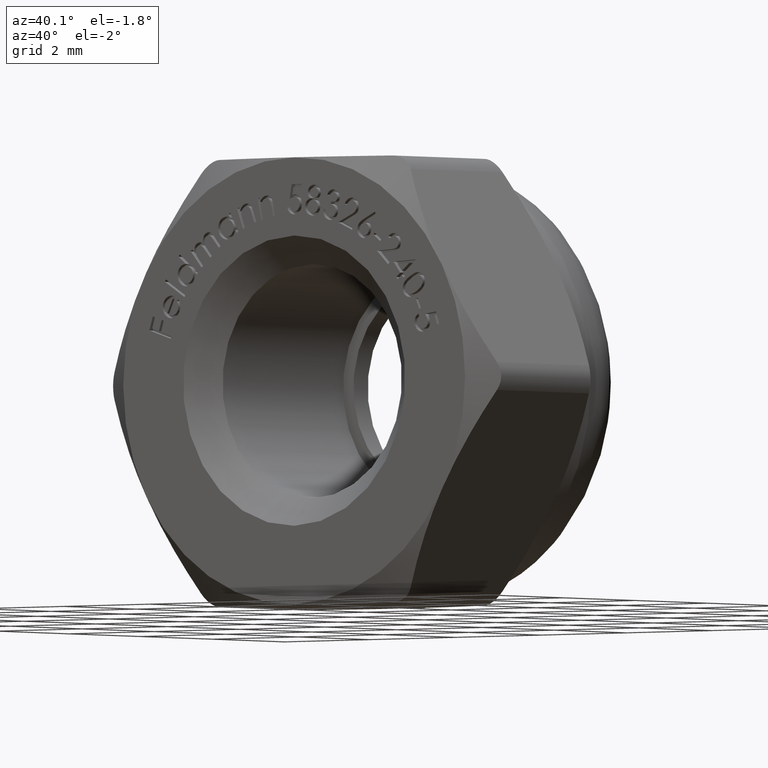
[diagram: clean part render]
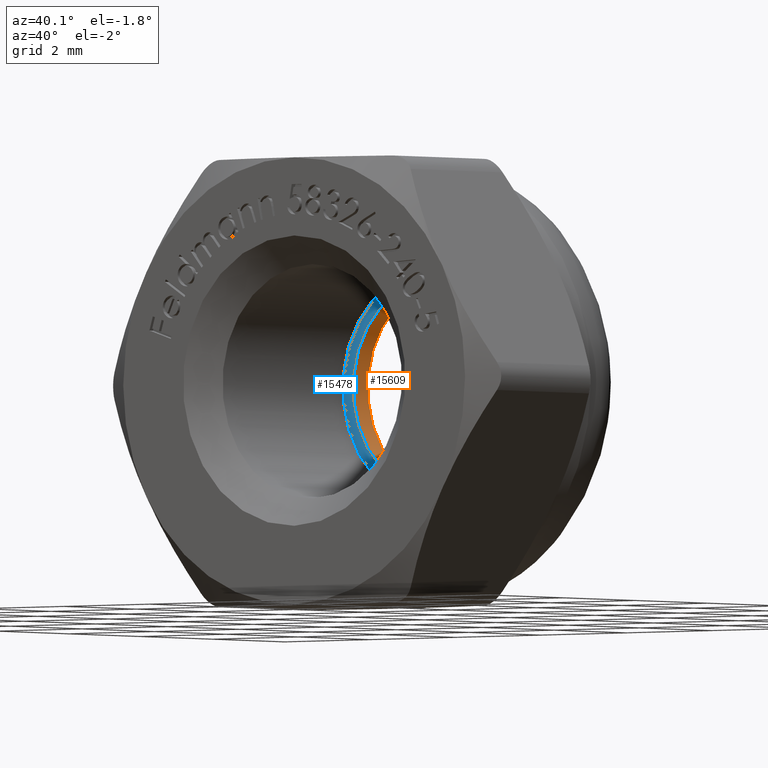
[diagram: same view with the hole feature highlighted: cylindrical wall and planar end face, labeled with their STEP entity ids]
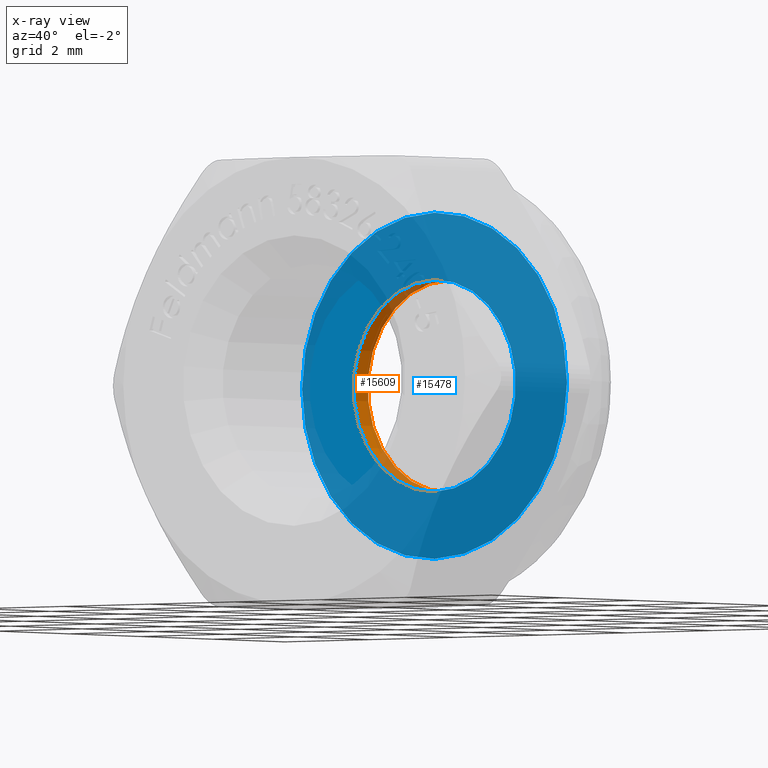
[diagram: x-ray of the same camera — body ghosted, the hole faces saturated]
A machine part, auxiliary view. The highlighted faces form one hole feature of diameter 3.8 mm: the cylindrical wall (entity #15609, orange) and its adjacent planar end face (entity #15478, blue) — they share a circular edge in the B-rep.
The next image is the same camera in x-ray (body ghosted, the hole faces saturated) — the bore reads through the body.
Wall:
#316 = DIRECTION ( 'NONE',  ( -0.000000000000000000, -1.000000000000000000, -0.000000000000000000 ) ) ;
#1316 = ORIENTED_EDGE ( 'NONE', *, *, #1592, .T. ) ;
#1592 = EDGE_CURVE ( 'NONE', #6107, #6107, #8417, .T. ) ;
#1656 = AXIS2_PLACEMENT_3D ( 'NONE', #15737, #14590, #7129 ) ;
#1769 = CIRCLE ( 'NONE', #1656, 1.899999999999999245 ) ;
#1871 = DIRECTION ( 'NONE',  ( 0.000000000000000000, 0.000000000000000000, -1.000000000000000000 ) ) ;
#2502 = DIRECTION ( 'NONE',  ( 0.000000000000000000, 1.000000000000000000, 0.000000000000000000 ) ) ;
#4370 = ORIENTED_EDGE ( 'NONE', *, *, #7376, .F. ) ;
#5129 = FACE_OUTER_BOUND ( 'NONE', #7504, .T. ) ;
#5311 = FACE_OUTER_BOUND ( 'NONE', #15224, .T. ) ;
#6107 = VERTEX_POINT ( 'NONE', #11170 ) ;
#6560 = CARTESIAN_POINT ( 'NONE',  ( 0.000000000000000000, 11.51812408671318622, 0.000000000000000000 ) ) ;
#7129 = DIRECTION ( 'NONE',  ( 0.000000000000000000, 0.000000000000000000, 1.000000000000000000 ) ) ;
#7376 = EDGE_CURVE ( 'NONE', #10370, #10370, #1769, .T. ) ;
#7504 = EDGE_LOOP ( 'NONE', ( #4370 ) ) ;
#8417 = CIRCLE ( 'NONE', #9250, 1.899999999999999245 ) ;
#9250 = AXIS2_PLACEMENT_3D ( 'NONE', #11063, #2502, #14866 ) ;
#9301 = AXIS2_PLACEMENT_3D ( 'NONE', #6560, #316, #1871 ) ;
#10370 = VERTEX_POINT ( 'NONE', #14970 ) ;
#10775 = CYLINDRICAL_SURFACE ( 'NONE', #9301, 1.899999999999999245 ) ;
#11063 = CARTESIAN_POINT ( 'NONE',  ( 0.000000000000000000, 2.699999999999999289, 0.000000000000000000 ) ) ;
#11170 = CARTESIAN_POINT ( 'NONE',  ( 0.000000000000000000, 2.699999999999999289, 1.899999999999999245 ) ) ;
#14590 = DIRECTION ( 'NONE',  ( 0.000000000000000000, 1.000000000000000000, 0.000000000000000000 ) ) ;
#14866 = DIRECTION ( 'NONE',  ( 0.000000000000000000, 0.000000000000000000, 1.000000000000000000 ) ) ;
#14970 = CARTESIAN_POINT ( 'NONE',  ( 0.000000000000000000, 2.299999999999999822, 1.899999999999999245 ) ) ;
#15224 = EDGE_LOOP ( 'NONE', ( #1316 ) ) ;
#15609 = ADVANCED_FACE ( 'NONE', ( #5129, #5311 ), #10775, .F. ) ;
#15737 = CARTESIAN_POINT ( 'NONE',  ( 0.000000000000000000, 2.299999999999999822, 0.000000000000000000 ) ) ;
End face:
#943 = AXIS2_PLACEMENT_3D ( 'NONE', #3940, #1387, #11260 ) ;
#1387 = DIRECTION ( 'NONE',  ( 0.000000000000000000, 1.000000000000000000, 0.000000000000000000 ) ) ;
#1656 = AXIS2_PLACEMENT_3D ( 'NONE', #15737, #14590, #7129 ) ;
#1769 = CIRCLE ( 'NONE', #1656, 1.899999999999999245 ) ;
#2321 = CIRCLE ( 'NONE', #4158, 3.099999999999999645 ) ;
#2398 = EDGE_LOOP ( 'NONE', ( #8603 ) ) ;
#2609 = CARTESIAN_POINT ( 'NONE',  ( 0.000000000000000000, 2.299999999999999822, 3.099999999999999645 ) ) ;
#2625 = CARTESIAN_POINT ( 'NONE',  ( 0.000000000000000000, 2.299999999999999822, 0.000000000000000000 ) ) ;
#3940 = CARTESIAN_POINT ( 'NONE',  ( 0.000000000000000000, 2.299999999999999822, 0.000000000000000000 ) ) ;
#4158 = AXIS2_PLACEMENT_3D ( 'NONE', #2625, #12575, #13799 ) ;
#6309 = PLANE ( 'NONE',  #943 ) ;
#7129 = DIRECTION ( 'NONE',  ( 0.000000000000000000, 0.000000000000000000, 1.000000000000000000 ) ) ;
#7376 = EDGE_CURVE ( 'NONE', #10370, #10370, #1769, .T. ) ;
#8603 = ORIENTED_EDGE ( 'NONE', *, *, #9780, .F. ) ;
#8819 = VERTEX_POINT ( 'NONE', #2609 ) ;
#9780 = EDGE_CURVE ( 'NONE', #8819, #8819, #2321, .T. ) ;
#10370 = VERTEX_POINT ( 'NONE', #14970 ) ;
#11168 = FACE_BOUND ( 'NONE', #13724, .T. ) ;
#11260 = DIRECTION ( 'NONE',  ( 0.000000000000000000, -0.000000000000000000, 1.000000000000000000 ) ) ;
#12575 = DIRECTION ( 'NONE',  ( 0.000000000000000000, 1.000000000000000000, 0.000000000000000000 ) ) ;
#13131 = FACE_OUTER_BOUND ( 'NONE', #2398, .T. ) ;
#13724 = EDGE_LOOP ( 'NONE', ( #15189 ) ) ;
#13799 = DIRECTION ( 'NONE',  ( 0.000000000000000000, 0.000000000000000000, 1.000000000000000000 ) ) ;
#14590 = DIRECTION ( 'NONE',  ( 0.000000000000000000, 1.000000000000000000, 0.000000000000000000 ) ) ;
#14970 = CARTESIAN_POINT ( 'NONE',  ( 0.000000000000000000, 2.299999999999999822, 1.899999999999999245 ) ) ;
#15189 = ORIENTED_EDGE ( 'NONE', *, *, #7376, .T. ) ;
#15478 = ADVANCED_FACE ( 'NONE', ( #13131, #11168 ), #6309, .F. ) ;
#15737 = CARTESIAN_POINT ( 'NONE',  ( 0.000000000000000000, 2.299999999999999822, 0.000000000000000000 ) ) ;